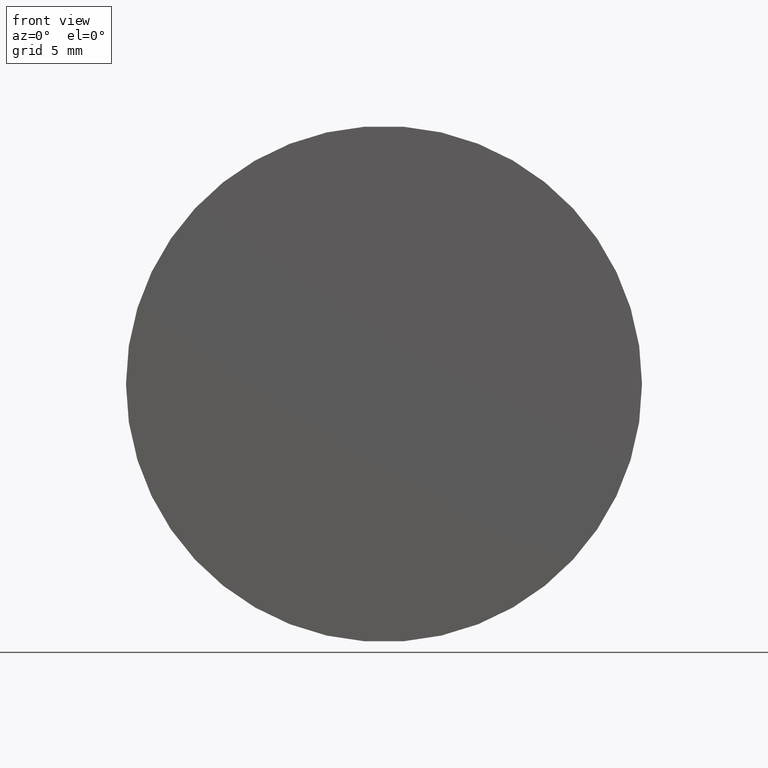
[diagram: clean part render]
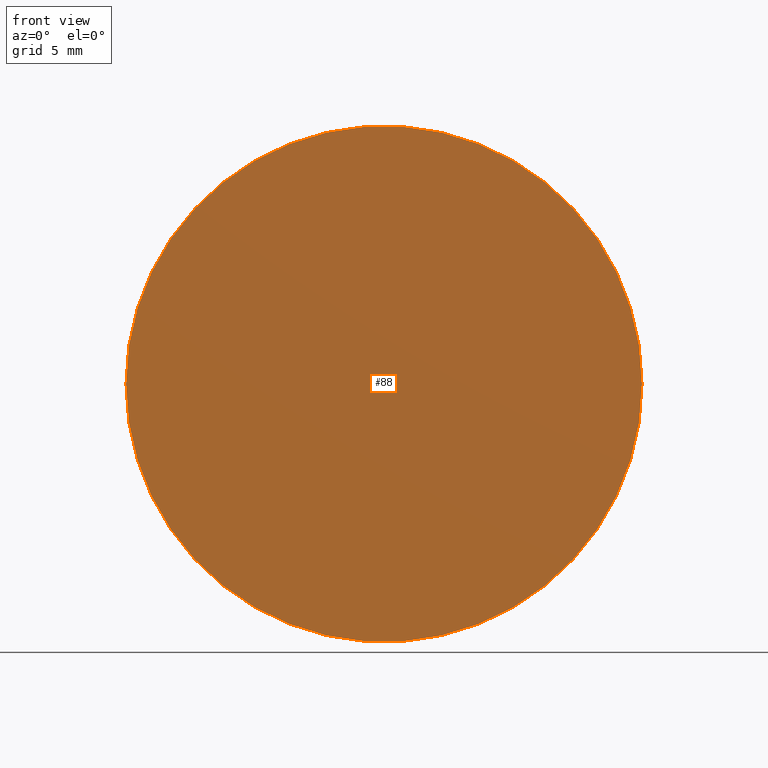
[diagram: same view with one face highlighted and labeled with its STEP entity id]
A machine part, front view. The second image highlights one B-rep face of the part: STEP entity #88.
In plain terms, the highlighted planar face has unit normal (-0, -1, 0).
Its self-contained STEP definition (entity closure, byte-faithful):
#13 = FACE_OUTER_BOUND ( 'NONE', #43, .T. ) ;
#15 = DIRECTION ( 'NONE',  ( -1.000000000000000000, 2.570034290968628392E-16, 0.000000000000000000 ) ) ;
#19 = AXIS2_PLACEMENT_3D ( 'NONE', #46, #99, #15 ) ;
#29 = VERTEX_POINT ( 'NONE', #156 ) ;
#43 = EDGE_LOOP ( 'NONE', ( #76, #108 ) ) ;
#46 = CARTESIAN_POINT ( 'NONE',  ( -9.629649721936179265E-31, -3.903127820947815962E-15, 0.000000000000000000 ) ) ;
#76 = ORIENTED_EDGE ( 'NONE', *, *, #122, .F. ) ;
#78 = DIRECTION ( 'NONE',  ( 2.570034290968628392E-16, 1.000000000000000000, -0.000000000000000000 ) ) ;
#88 = ADVANCED_FACE ( 'NONE', ( #13 ), #169, .T. ) ;
#92 = DIRECTION ( 'NONE',  ( -2.570034290968628392E-16, -1.000000000000000000, 0.000000000000000000 ) ) ;
#94 = CARTESIAN_POINT ( 'NONE',  ( -4.953807192565965182E-31, -1.927525718226471442E-15, 0.000000000000000000 ) ) ;
#99 = DIRECTION ( 'NONE',  ( 2.570034290968628392E-16, 1.000000000000000000, -0.000000000000000000 ) ) ;
#108 = ORIENTED_EDGE ( 'NONE', *, *, #197, .F. ) ;
#122 = EDGE_CURVE ( 'NONE', #29, #139, #152, .T. ) ;
#127 = DIRECTION ( 'NONE',  ( -1.000000000000000000, 2.570034290968628392E-16, 0.000000000000000000 ) ) ;
#133 = CIRCLE ( 'NONE', #19, 15.00000000000000000 ) ;
#139 = VERTEX_POINT ( 'NONE', #173 ) ;
#152 = CIRCLE ( 'NONE', #176, 15.00000000000000000 ) ;
#155 = DIRECTION ( 'NONE',  ( 1.000000000000000000, -2.570034290968628392E-16, 0.000000000000000000 ) ) ;
#156 = CARTESIAN_POINT ( 'NONE',  ( -15.00000000000000000, -4.807638449487346729E-17, 0.000000000000000000 ) ) ;
#162 = AXIS2_PLACEMENT_3D ( 'NONE', #94, #92, #155 ) ;
#169 = PLANE ( 'NONE',  #162 ) ;
#173 = CARTESIAN_POINT ( 'NONE',  ( 15.00000000000000000, -7.758179257400758057E-15, 1.836970198721029589E-15 ) ) ;
#176 = AXIS2_PLACEMENT_3D ( 'NONE', #185, #78, #127 ) ;
#185 = CARTESIAN_POINT ( 'NONE',  ( -9.629649721936179265E-31, -3.903127820947815962E-15, 0.000000000000000000 ) ) ;
#197 = EDGE_CURVE ( 'NONE', #139, #29, #133, .T. ) ;